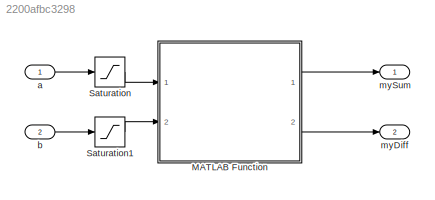
MODEL slx_2200afbc3298
KIND model
CONFIG AbsTol = auto
CONFIG EnableMultiTasking = off
CONFIG FixedStep = auto
CONFIG MaxStep = auto
CONFIG MinStep = auto
CONFIG RelTol = 1e-3
CONFIG SampleTimeConstraint = Unconstrained
CONFIG SolverName = VariableStepAuto
CONFIG StartTime = 0.0
CONFIG StopTime = 10.0
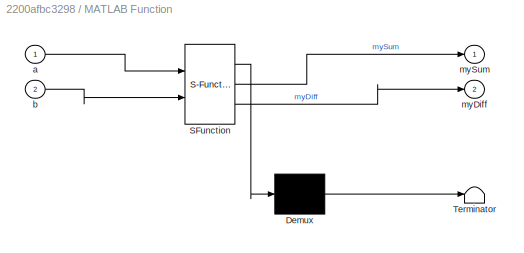
BLOCK [SubSystem] MATLAB Function
  ErrorFcn = Stateflow.Translate.translate
  PermitHierarchicalResolution = ExplicitOnly
  Ports = [2, 2]
  RequestExecContextInheritance = off
  SFBlockType = MATLAB Function
  TreatAsAtomicUnit = on
BLOCK [Demux] MATLAB Function/ Demux 
  Outputs = 1
  Ports = [1, 1]
BLOCK [S-Function] MATLAB Function/ SFunction 
  EnableBusSupport = off
  FunctionName = sf_sfun
  PortCounts = [2 3]
  Ports = [2, 3]
  SFcnIsStateOwnerBlock = off
  SFunctionDeploymentMode = off
  Tag = Stateflow S-Function 2
BLOCK [Terminator] MATLAB Function/ Terminator 
BLOCK [Inport] MATLAB Function/a
BLOCK [Inport] MATLAB Function/b
  Port = 2
BLOCK [Outport] MATLAB Function/myDiff
  Port = 2
BLOCK [Outport] MATLAB Function/mySum
BLOCK [Saturate] Saturation
  LowerLimit = 0
  UpperLimit = 1
BLOCK [Saturate] Saturation1
  LowerLimit = 0
  UpperLimit = 1
BLOCK [Inport] a
BLOCK [Inport] b
  Port = 2
BLOCK [Outport] myDiff
  Port = 2
BLOCK [Outport] mySum
LINE MATLAB Function:1 -> mySum:1
LINE MATLAB Function:2 -> myDiff:1
LINE Saturation1:1 -> MATLAB Function:2
LINE Saturation:1 -> MATLAB Function:1
LINE a:1 -> Saturation:1
LINE b:1 -> Saturation1:1
CHART MATLAB Function states=1 transitions=1
  STATE_LABEL 'eML_blk_kernel()'
  STATE_LABEL 'SCRIPT:\nfunction [mySum,myDiff] = myCalculator(a,b)\n\nmySum  = a+b;\nmyDiff = a-b;\n'
CHART  states=0 transitions=0
